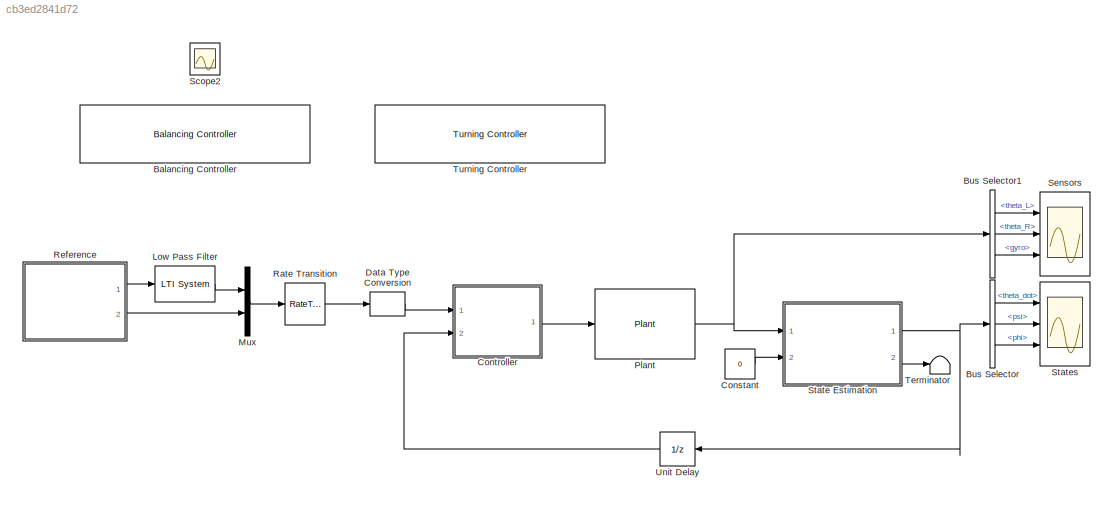
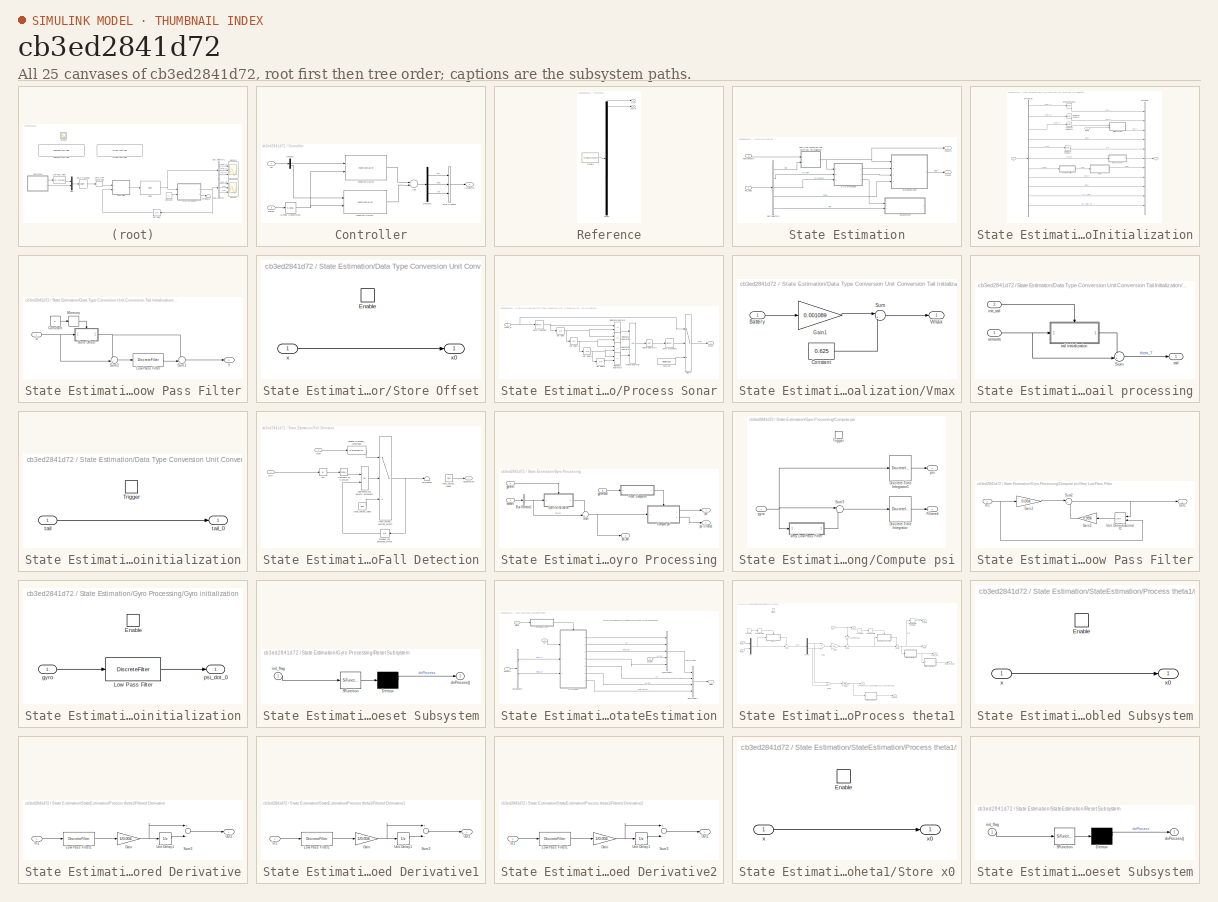
[diagram: thumbnail index - all 25 canvases of the model, root first then tree order]
MODEL slx_cb3ed2841d72
KIND model
BLOCK [Reference] Balancing Controller  REF=SimControllerFcns/Balancing Controller
  Ports = [0, 0, 0, 1]
  SourceBlock = SimControllerFcns/Balancing Controller
  SourceType = SubSystem
BLOCK [BusSelector] Bus Selector
  OutputSignals = balancerStates.theta_dot,balancerStates.psi,phi
  Ports = [1, 3]
BLOCK [BusSelector] Bus Selector1
  OutputSignals = theta_L,theta_R,gyro
  Ports = [1, 3]
BLOCK [Constant] Constant
  OutDataTypeStr = Bus: Init_Bus
  Value = 0
BLOCK [SubSystem] Controller
  Ports = [2, 1]
  RequestExecContextInheritance = off
BLOCK [Outport] Controller/Actuators
  IconDisplay = Port number
  OutDataTypeStr = Bus: PWM_bus
BLOCK [Sum] Controller/Add
  InputSameDT = off
  OutDataTypeStr = Inherit: Inherit via internal rule
  Ports = [2, 1]
  SaturateOnIntegerOverflow = off
BLOCK [BusCreator] Controller/Bus Creator
  DisplayOption = bar
  Inputs = 3
  OutDataTypeStr = Bus: PWM_bus
  Ports = [3, 1]
BLOCK [Demux] Controller/Demux
  DisplayOption = bar
  Outputs = 2
  Ports = [1, 2]
BLOCK [Demux] Controller/Demux1
  DisplayOption = bar
  Outputs = 3
  Ports = [1, 3]
BLOCK [FunctionCaller] Controller/Function Caller
  FunctionPrototype = out = BalancingCtrl(v_ref,states)
  Ports = [2, 1]
BLOCK [FunctionCaller] Controller/Function Caller1
  FunctionPrototype = out = TurningCtrl(w_ref,states)
  Ports = [2, 1]
BLOCK [SignalConversion] Controller/Signal Conversion1
  ConversionOutput = Nonvirtual bus
BLOCK [Inport] Controller/ref
  IconDisplay = Port number
BLOCK [Inport] Controller/states
  IconDisplay = Port number
  OutDataTypeStr = Bus: States_Bus
  Port = 2
BLOCK [DataTypeConversion] Data Type Conversion
  OutDataTypeStr = single
  RndMeth = Floor
  SaturateOnIntegerOverflow = off
BLOCK [Reference] Low Pass Filter  REF=cstblocks/LTI System
  Commented = through
  IC = []
  Ports = [1, 1]
  SourceBlock = cstblocks/LTI System
  SourceType = LTI Block
  sys = tf(20,[1 20])
BLOCK [Mux] Mux
  DisplayOption = bar
  Inputs = 2
  Ports = [2, 1]
BLOCK [Reference] Plant  REF=plantNXT/Plant
  Ports = [1, 1]
  SourceBlock = plantNXT/Plant
  SourceType = SubSystem
BLOCK [RateTransition] Rate Transition
  OutPortSampleTime = balancer_ts
BLOCK [SubSystem] Reference
  ClipboardFcn = sigbuilder_block('clipboard');
  CloseFcn = sigbuilder_block('close');
  ContinueFcn = sigbuilder_block('continue');
  CopyFcn = sigbuilder_block('copy');
  DeleteFcn = sigbuilder_block('delete');
  LoadFcn = sigbuilder_block('load');
  MaskHideContents = on
  ModelCloseFcn = sigbuilder_block('modelClose');
  NameChangeFcn = sigbuilder_block('namechange');
  OpenFcn = sigbuilder_block('open',[49.0345 291.103 550.552 394.759 ]);
  PauseFcn = sigbuilder_block('pause');
  Ports = [0, 2]
  PreSaveFcn = sigbuilder_block('preSave');
  RequestExecContextInheritance = off
  StartFcn = sigbuilder_block('start');
  StopFcn = sigbuilder_block('stop');
  Tag = STV Subsys
BLOCK [Demux] Reference/Demux
  Outputs = 2
  Ports = [1, 2]
  Tag = STV Demux
BLOCK [FromWorkspace] Reference/FromWs
  SampleTime = 0
  Tag = STV FromWs
  VariableName = tuvar
  ZeroCross = on
BLOCK [Outport] Reference/V_ref
  IconDisplay = Port number
  Tag = STV Outport
BLOCK [Outport] Reference/phi_ref
  IconDisplay = Port number
  Port = 2
  Tag = STV Outport
BLOCK [Scope] Scope2
  DataFormat = StructureWithTime
  Floating = off
  IOType = viewer
  NumInputPorts = 1
  Ports = []
  SampleTime = 0
  SaveName = ScopeData2
  ShowLegends = off
BLOCK [Scope] Sensors
  DataFormat = StructureWithTime
  Floating = off
  LimitDataPoints = off
  NumInputPorts = 3
  Ports = [3]
  SampleTime = 0
  SaveName = ScopeData1
  ShowLegends = off
  TimeRange = 50
  YMax = 10~0.15~1.5
  YMin = -10~-0.1~-1
  ZoomMode = yonly
BLOCK [SubSystem] State Estimation
  Ports = [2, 2]
  RequestExecContextInheritance = off
BLOCK [BusSelector] State Estimation/Bus Selector1
  OutputSignals = tail,gyroInit,gyroReset,theta,fall
  Ports = [1, 5]
BLOCK [SubSystem] State Estimation/Data Type Conversion Unit Conversion Tail Initialization
  Ports = [2, 1]
  RequestExecContextInheritance = off
BLOCK [BusCreator] State Estimation/Data Type Conversion Unit Conversion Tail Initialization/Bus Creator
  DisplayOption = bar
  Inputs = 11
  OutDataTypeStr = Bus: Sensors_Bus
  Ports = [11, 1]
BLOCK [BusSelector] State Estimation/Data Type Conversion Unit Conversion Tail Initialization/Bus Selector
  OutputSignals = theta_L,theta_R,theta_T,light,gyro,sonar,battery,touch,time,ok_button,BT_status_in
  Ports = [1, 11]
BLOCK [Reference] State Estimation/Data Type Conversion Unit Conversion Tail Initialization/Degrees to Radians  REF=simulink_extras/Transformations/Degrees to
Radians
  Ports = [1, 1]
  SourceBlock = simulink_extras/Transformations/Degrees to\nRadians
  SourceType = DegreesToRadians
BLOCK [Reference] State Estimation/Data Type Conversion Unit Conversion Tail Initialization/Degrees to Radians1  REF=simulink_extras/Transformations/Degrees to
Radians
  Ports = [1, 1]
  SourceBlock = simulink_extras/Transformations/Degrees to\nRadians
  SourceType = DegreesToRadians
BLOCK [Reference] State Estimation/Data Type Conversion Unit Conversion Tail Initialization/Degrees to Radians2  REF=simulink_extras/Transformations/Degrees to
Radians
  Ports = [1, 1]
  SourceBlock = simulink_extras/Transformations/Degrees to\nRadians
  SourceType = DegreesToRadians
BLOCK [Reference] State Estimation/Data Type Conversion Unit Conversion Tail Initialization/Degrees to Radians4  REF=simulink_extras/Transformations/Degrees to
Radians
  Ports = [1, 1]
  SourceBlock = simulink_extras/Transformations/Degrees to\nRadians
  SourceType = DegreesToRadians
BLOCK [SubSystem] State Estimation/Data Type Conversion Unit Conversion Tail Initialization/Low Pass Filter
  Ports = [1, 1]
  RequestExecContextInheritance = off
BLOCK [Constant] State Estimation/Data Type Conversion Unit Conversion Tail Initialization/Low Pass Filter/Constant
  OutDataTypeStr = boolean
  Value = 0
BLOCK [DiscreteFilter] State Estimation/Data Type Conversion Unit Conversion Tail Initialization/Low Pass Filter/Low Pass Filter
  Denominator = [1 -0.99]
  InputPortMap = u0
  Numerator = [.01]
  Ports = [1, 1]
BLOCK [Memory] State Estimation/Data Type Conversion Unit Conversion Tail Initialization/Low Pass Filter/Memory
  InheritSampleTime = on
  X0 = 1
BLOCK [SubSystem] State Estimation/Data Type Conversion Unit Conversion Tail Initialization/Low Pass Filter/Store Offset
  Ports = [1, 1, 1]
  RequestExecContextInheritance = off
  TreatAsAtomicUnit = on
BLOCK [EnablePort] State Estimation/Data Type Conversion Unit Conversion Tail Initialization/Low Pass Filter/Store Offset/Enable
  Ports = []
BLOCK [Inport] State Estimation/Data Type Conversion Unit Conversion Tail Initialization/Low Pass Filter/Store Offset/x
  IconDisplay = Port number
BLOCK [Outport] State Estimation/Data Type Conversion Unit Conversion Tail Initialization/Low Pass Filter/Store Offset/x0
  IconDisplay = Port number
  InitialOutput = 0
BLOCK [Sum] State Estimation/Data Type Conversion Unit Conversion Tail Initialization/Low Pass Filter/Sum1
  IconShape = round
  InputSameDT = off
  Inputs = ++|
  OutDataTypeStr = Inherit: Inherit via internal rule
  Ports = [2, 1]
  SaturateOnIntegerOverflow = off
BLOCK [Sum] State Estimation/Data Type Conversion Unit Conversion Tail Initialization/Low Pass Filter/Sum2
  IconShape = round
  InputSameDT = off
  Inputs = -+|
  OutDataTypeStr = Inherit: Inherit via internal rule
  Ports = [2, 1]
  SaturateOnIntegerOverflow = off
BLOCK [Inport] State Estimation/Data Type Conversion Unit Conversion Tail Initialization/Low Pass Filter/u
  IconDisplay = Port number
BLOCK [Outport] State Estimation/Data Type Conversion Unit Conversion Tail Initialization/Low Pass Filter/y
  IconDisplay = Port number
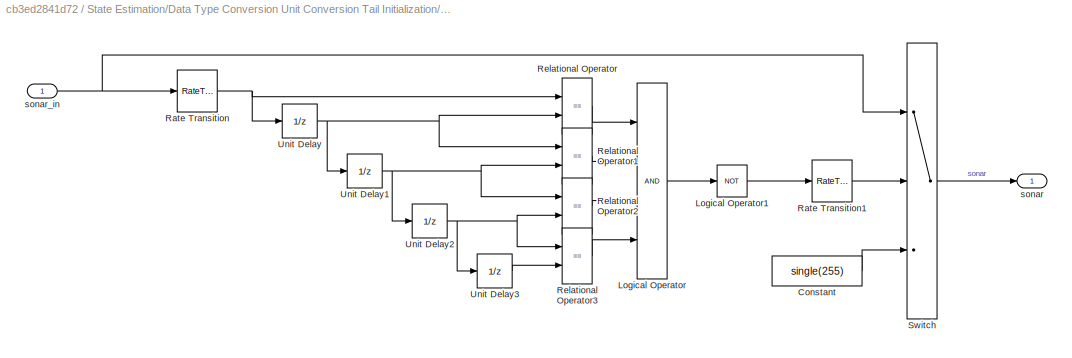
BLOCK [SubSystem] State Estimation/Data Type Conversion Unit Conversion Tail Initialization/Process Sonar
  Commented = through
  Ports = [1, 1]
  RequestExecContextInheritance = off
BLOCK [Constant] State Estimation/Data Type Conversion Unit Conversion Tail Initialization/Process Sonar/Constant
  Value = single(255)
BLOCK [Logic] State Estimation/Data Type Conversion Unit Conversion Tail Initialization/Process Sonar/Logical Operator
  AllPortsSameDT = off
  Inputs = 4
  OutDataTypeStr = boolean
  Ports = [4, 1]
BLOCK [Logic] State Estimation/Data Type Conversion Unit Conversion Tail Initialization/Process Sonar/Logical Operator1
  AllPortsSameDT = off
  Operator = NOT
  OutDataTypeStr = boolean
  Ports = [1, 1]
BLOCK [RateTransition] State Estimation/Data Type Conversion Unit Conversion Tail Initialization/Process Sonar/Rate Transition
  OutPortSampleTime = 0.02
BLOCK [RateTransition] State Estimation/Data Type Conversion Unit Conversion Tail Initialization/Process Sonar/Rate Transition1
  OutPortSampleTime = 0.004
BLOCK [RelationalOperator] State Estimation/Data Type Conversion Unit Conversion Tail Initialization/Process Sonar/Relational Operator
  InputSameDT = off
  Operator = ==
  OutDataTypeStr = boolean
  Ports = [2, 1]
BLOCK [RelationalOperator] State Estimation/Data Type Conversion Unit Conversion Tail Initialization/Process Sonar/Relational Operator1
  InputSameDT = off
  Operator = ==
  OutDataTypeStr = boolean
  Ports = [2, 1]
BLOCK [RelationalOperator] State Estimation/Data Type Conversion Unit Conversion Tail Initialization/Process Sonar/Relational Operator2
  InputSameDT = off
  Operator = ==
  OutDataTypeStr = boolean
  Ports = [2, 1]
BLOCK [RelationalOperator] State Estimation/Data Type Conversion Unit Conversion Tail Initialization/Process Sonar/Relational Operator3
  InputSameDT = off
  Operator = ==
  OutDataTypeStr = boolean
  Ports = [2, 1]
BLOCK [Switch] State Estimation/Data Type Conversion Unit Conversion Tail Initialization/Process Sonar/Switch
  Criteria = u2 ~= 0
  InputSameDT = off
  SaturateOnIntegerOverflow = off
BLOCK [UnitDelay] State Estimation/Data Type Conversion Unit Conversion Tail Initialization/Process Sonar/Unit Delay
  InputProcessing = Elements as channels (sample based)
  SampleTime = -1
BLOCK [UnitDelay] State Estimation/Data Type Conversion Unit Conversion Tail Initialization/Process Sonar/Unit Delay1
  InputProcessing = Elements as channels (sample based)
  SampleTime = -1
BLOCK [UnitDelay] State Estimation/Data Type Conversion Unit Conversion Tail Initialization/Process Sonar/Unit Delay2
  InputProcessing = Elements as channels (sample based)
  SampleTime = -1
BLOCK [UnitDelay] State Estimation/Data Type Conversion Unit Conversion Tail Initialization/Process Sonar/Unit Delay3
  InputProcessing = Elements as channels (sample based)
  SampleTime = -1
BLOCK [Outport] State Estimation/Data Type Conversion Unit Conversion Tail Initialization/Process Sonar/sonar
  IconDisplay = Port number
BLOCK [Inport] State Estimation/Data Type Conversion Unit Conversion Tail Initialization/Process Sonar/sonar_in
  IconDisplay = Port number
BLOCK [SubSystem] State Estimation/Data Type Conversion Unit Conversion Tail Initialization/Vmax
  Ports = [1, 1]
  RequestExecContextInheritance = off
BLOCK [Inport] State Estimation/Data Type Conversion Unit Conversion Tail Initialization/Vmax/Battery
  IconDisplay = Port number
BLOCK [Constant] State Estimation/Data Type Conversion Unit Conversion Tail Initialization/Vmax/Constant
  OutDataTypeStr = single
  Value = 0.625
BLOCK [Gain] State Estimation/Data Type Conversion Unit Conversion Tail Initialization/Vmax/Gain1
  Gain = 0.001089
  OutDataTypeStr = Inherit: Inherit via internal rule
  ParamDataTypeStr = Inherit: Inherit via internal rule
  SaturateOnIntegerOverflow = off
BLOCK [Sum] State Estimation/Data Type Conversion Unit Conversion Tail Initialization/Vmax/Sum
  IconShape = round
  InputSameDT = off
  Inputs = |+-
  OutDataTypeStr = Inherit: Inherit via internal rule
  Ports = [2, 1]
  SaturateOnIntegerOverflow = off
BLOCK [Outport] State Estimation/Data Type Conversion Unit Conversion Tail Initialization/Vmax/Vmax
  IconDisplay = Port number
BLOCK [Inport] State Estimation/Data Type Conversion Unit Conversion Tail Initialization/init_tail
  IconDisplay = Port number
  Port = 2
BLOCK [SubSystem] State Estimation/Data Type Conversion Unit Conversion Tail Initialization/tail processing
  Ports = [2, 1]
  RequestExecContextInheritance = off
BLOCK [Sum] State Estimation/Data Type Conversion Unit Conversion Tail Initialization/tail processing/Sum
  IconShape = round
  InputSameDT = off
  Inputs = -+|
  OutDataTypeStr = Inherit: Inherit via internal rule
  Ports = [2, 1]
  SaturateOnIntegerOverflow = off
BLOCK [Inport] State Estimation/Data Type Conversion Unit Conversion Tail Initialization/tail processing/init_tail
  IconDisplay = Port number
  Port = 2
BLOCK [Inport] State Estimation/Data Type Conversion Unit Conversion Tail Initialization/tail processing/sensors
  IconDisplay = Port number
BLOCK [Outport] State Estimation/Data Type Conversion Unit Conversion Tail Initialization/tail processing/tail
  IconDisplay = Port number
  InitialOutput = 0
  OutputWhenDisabled = reset
BLOCK [SubSystem] State Estimation/Data Type Conversion Unit Conversion Tail Initialization/tail processing/tail initialization
  Ports = [1, 1, 0, 1]
  RequestExecContextInheritance = off
  TreatAsAtomicUnit = on
BLOCK [TriggerPort] State Estimation/Data Type Conversion Unit Conversion Tail Initialization/tail processing/tail initialization/Trigger
  PortDimensions = 1
  Ports = []
  StatesWhenEnabling = held
BLOCK [Inport] State Estimation/Data Type Conversion Unit Conversion Tail Initialization/tail processing/tail initialization/tail
  IconDisplay = Port number
BLOCK [Outport] State Estimation/Data Type Conversion Unit Conversion Tail Initialization/tail processing/tail initialization/tail_0
  IconDisplay = Port number
  InitialOutput = 0
BLOCK [Inport] State Estimation/Data Type Conversion Unit Conversion Tail Initialization/u
  IconDisplay = Port number
BLOCK [Outport] State Estimation/Data Type Conversion Unit Conversion Tail Initialization/y
  IconDisplay = Port number
BLOCK [SubSystem] State Estimation/Fall Detection
  Commented = on
  Ports = [2, 1]
  RequestExecContextInheritance = off
BLOCK [Abs] State Estimation/Fall Detection/Abs
  SaturateOnIntegerOverflow = off
BLOCK [Reference] State Estimation/Fall Detection/Compare To Constant  REF=simulink/Logic and Bit
Operations/Compare
To Constant
  OutDataTypeStr = boolean
  Ports = [1, 1]
  SourceBlock = simulink/Logic and Bit\nOperations/Compare\nTo Constant
  SourceType = Compare To Constant
  ZeroCross = on
  const = 1
  relop = >
BLOCK [Terminator] State Estimation/Fall Detection/Terminator
BLOCK [Logic] State Estimation/Fall Detection/aggregate_fall_detection_comparison
  Operator = OR
  OutDataTypeStr = boolean
  Ports = [2, 1]
BLOCK [DataTypeConversion] State Estimation/Fall Detection/boolean_to_integer_conversion
  AttributesFormatString = Output data type: %<OutDataTypeStr>
  OutDataTypeStr = uint8
  RndMeth = Floor
  SaturateOnIntegerOverflow = off
BLOCK [Outport] State Estimation/Fall Detection/fall_detected
  IconDisplay = Port number
BLOCK [Inport] State Estimation/Fall Detection/gyro
  AttributesFormatString = Output data type: %<OutDataTypeStr>
  IconDisplay = Port number
BLOCK [UnitDelay] State Estimation/Fall Detection/previous_fall_detection_status
  InputProcessing = Elements as channels (sample based)
  SampleTime = -1
BLOCK [Inport] State Estimation/Fall Detection/reset
  AttributesFormatString = Output data type: %<OutDataTypeStr>
  IconDisplay = Port number
  OutDataTypeStr = boolean
  Port = 2
BLOCK [MultiPortSwitch] State Estimation/Fall Detection/reset_output_overrice_switch
  DataPortOrder = Zero-based contiguous
  Inputs = 2
  Ports = [3, 1]
  SaturateOnIntegerOverflow = off
  zeroidx = on
BLOCK [Constant] State Estimation/Fall Detection/reset_output_value
  Value = false
BLOCK [Constant] State Estimation/Fall Detection/reset_output_value1
  OutDataTypeStr = boolean
  Value = false
BLOCK [SubSystem] State Estimation/Gyro Processing
  Ports = [3, 3]
  RequestExecContextInheritance = off
BLOCK [BusSelector] State Estimation/Gyro Processing/Bus Selector1
  OutputSignals = gyro
  Ports = [1, 1]
BLOCK [SubSystem] State Estimation/Gyro Processing/Compute psi
  Ports = [1, 2, 0, 1]
  RequestExecContextInheritance = off
BLOCK [DiscreteIntegrator] State Estimation/Gyro Processing/Compute psi/Discrete-Time Integrator
  Ports = [1, 1]
  SampleTime = -1
BLOCK [DiscreteIntegrator] State Estimation/Gyro Processing/Compute psi/Discrete-Time Integrator1
  Ports = [1, 1]
  SampleTime = -1
BLOCK [Outport] State Estimation/Gyro Processing/Compute psi/Filtered
  IconDisplay = Port number
  InitialOutput = 0
  Port = 2
BLOCK [Sum] State Estimation/Gyro Processing/Compute psi/Sum3
  IconShape = round
  InputSameDT = off
  Inputs = |+-
  OutDataTypeStr = Inherit: Inherit via internal rule
  Ports = [2, 1]
  SaturateOnIntegerOverflow = off
BLOCK [TriggerPort] State Estimation/Gyro Processing/Compute psi/Trigger
  PortDimensions = 1
  Ports = []
  StatesWhenEnabling = reset
  TriggerType = function-call
BLOCK [SubSystem] State Estimation/Gyro Processing/Compute psi/Very Low Pass Filter
  Ports = [1, 1]
  RequestExecContextInheritance = off
BLOCK [Gain] State Estimation/Gyro Processing/Compute psi/Very Low Pass Filter/Gain2
  Gain = 0.004
  OutDataTypeStr = Inherit: Inherit via internal rule
  ParamDataTypeStr = Inherit: Inherit via internal rule
  SaturateOnIntegerOverflow = off
BLOCK [Gain] State Estimation/Gyro Processing/Compute psi/Very Low Pass Filter/Gain3
  Gain = 0.996
  OutDataTypeStr = Inherit: Inherit via internal rule
  ParamDataTypeStr = Inherit: Inherit via internal rule
  SaturateOnIntegerOverflow = off
BLOCK [Inport] State Estimation/Gyro Processing/Compute psi/Very Low Pass Filter/In1
  IconDisplay = Port number
BLOCK [Outport] State Estimation/Gyro Processing/Compute psi/Very Low Pass Filter/Out1
  IconDisplay = Port number
BLOCK [Sum] State Estimation/Gyro Processing/Compute psi/Very Low Pass Filter/Sum2
  IconShape = round
  InputSameDT = off
  Inputs = |++
  OutDataTypeStr = Inherit: Inherit via internal rule
  Ports = [2, 1]
  SaturateOnIntegerOverflow = off
BLOCK [Reference] State Estimation/Gyro Processing/Compute psi/Very Low Pass Filter/Unit Delay External IC  REF=simulink/Additional Math
& Discrete/Additional
Discrete/Unit Delay
External IC
  Ports = [2, 1]
  SourceBlock = simulink/Additional Math\n& Discrete/Additional\nDiscrete/Unit Delay\nExternal IC
  SourceType = Unit Delay External Initial Condition
  tsamp = -1
BLOCK [Inport] State Estimation/Gyro Processing/Compute psi/gyro
  IconDisplay = Port number
BLOCK [Outport] State Estimation/Gyro Processing/Compute psi/psi
  IconDisplay = Port number
  InitialOutput = 0
BLOCK [SubSystem] State Estimation/Gyro Processing/Gyro initialization
  Ports = [1, 1, 1]
  RequestExecContextInheritance = off
  TreatAsAtomicUnit = on
BLOCK [EnablePort] State Estimation/Gyro Processing/Gyro initialization/Enable
  Ports = []
  StatesWhenEnabling = reset
BLOCK [DiscreteFilter] State Estimation/Gyro Processing/Gyro initialization/Low Pass Filter
  Denominator = [1 -0.99]
  InputPortMap = u0
  Numerator = [.01]
  Ports = [1, 1]
BLOCK [Inport] State Estimation/Gyro Processing/Gyro initialization/gyro
  IconDisplay = Port number
BLOCK [Outport] State Estimation/Gyro Processing/Gyro initialization/psi_dot_0
  IconDisplay = Port number
  InitialOutput = 0
BLOCK [SubSystem] State Estimation/Gyro Processing/Reset Subsystem
  ErrorFcn = Stateflow.Translate.translate
  PermitHierarchicalResolution = ExplicitOnly
  Ports = [1, 1]
  RequestExecContextInheritance = off
  SFBlockType = Chart
  TreatAsAtomicUnit = on
BLOCK [Demux] State Estimation/Gyro Processing/Reset Subsystem/ Demux 
  Outputs = 1
  Ports = [1, 1]
BLOCK [S-Function] State Estimation/Gyro Processing/Reset Subsystem/ SFunction 
  EnableBusSupport = on
  FunctionName = sf_sfun
  PortCounts = [1 1]
  Ports = [1, 1]
  Tag = Stateflow S-Function plantNXT_testharness 1
BLOCK [Outport] State Estimation/Gyro Processing/Reset Subsystem/doProcess()
  IconDisplay = Port number
BLOCK [Inport] State Estimation/Gyro Processing/Reset Subsystem/init_flag
  IconDisplay = Port number
BLOCK [Sum] State Estimation/Gyro Processing/Sum
  IconShape = round
  InputSameDT = off
  Inputs = -+|
  OutDataTypeStr = Inherit: Inherit via internal rule
  Ports = [2, 1]
  SaturateOnIntegerOverflow = off
BLOCK [Inport] State Estimation/Gyro Processing/gyroInit
  IconDisplay = Port number
  Port = 2
BLOCK [Inport] State Estimation/Gyro Processing/gyroReset
  IconDisplay = Port number
  Port = 3
BLOCK [Outport] State Estimation/Gyro Processing/psi
  IconDisplay = Port number
BLOCK [Outport] State Estimation/Gyro Processing/psi filtered
  IconDisplay = Port number
  Port = 3
BLOCK [Outport] State Estimation/Gyro Processing/psi_dot
  IconDisplay = Port number
  Port = 2
BLOCK [Inport] State Estimation/Gyro Processing/sensors
  IconDisplay = Port number
BLOCK [Inport] State Estimation/Raw Sensors
  IconDisplay = Port number
BLOCK [SubSystem] State Estimation/StateEstimation
  Ports = [4, 1]
  RequestExecContextInheritance = off
BLOCK [BusCreator] State Estimation/StateEstimation/Bus Creator1
  DisplayOption = bar
  NonVirtualBus = on
  OutDataTypeStr = Bus: States_Bus
  Ports = [4, 1]
BLOCK [BusCreator] State Estimation/StateEstimation/Bus Creator2
  DisplayOption = bar
  Inputs = 5
  OutDataTypeStr = Bus: Balancer_States_Bus
  Ports = [5, 1]
BLOCK [BusSelector] State Estimation/StateEstimation/Bus Selector1
  OutputSignals = theta_L,theta_R
  Ports = [1, 2]
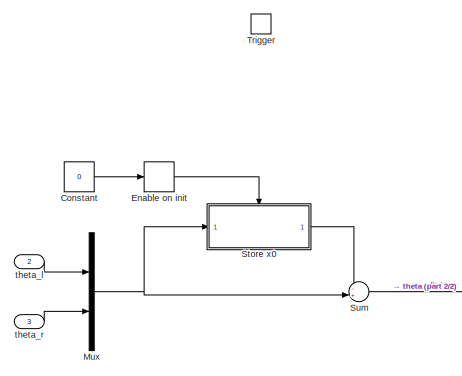
[diagram: State Estimation/StateEstimation/Process theta1 - part 1/2, top left region]
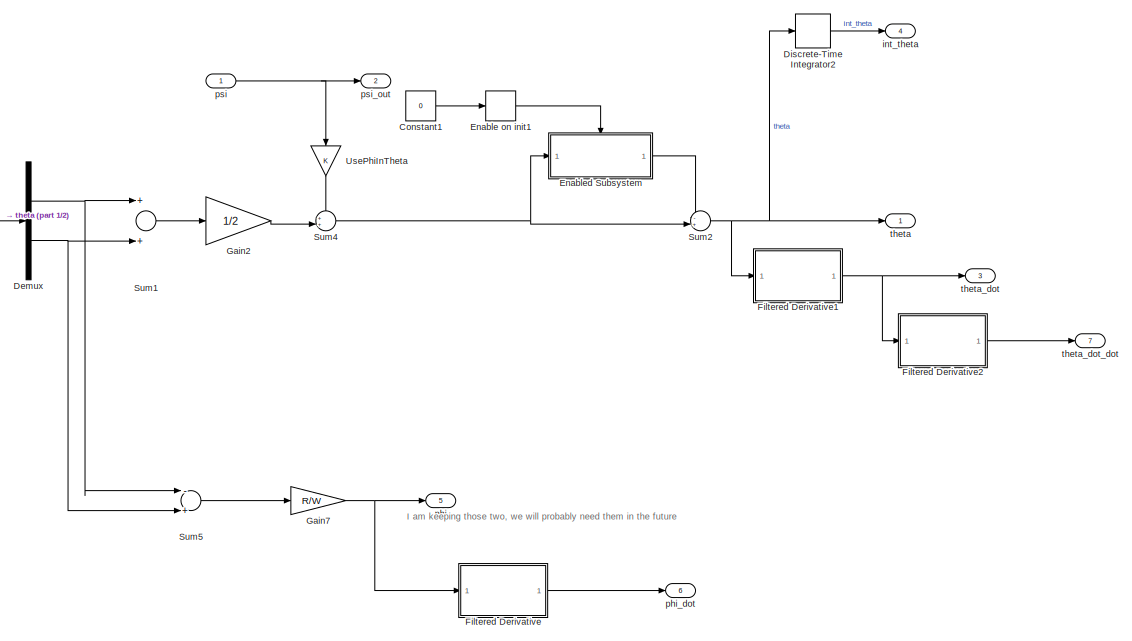
[diagram: State Estimation/StateEstimation/Process theta1 - part 2/2, center side, full height]
BLOCK [SubSystem] State Estimation/StateEstimation/Process theta1
  Ports = [3, 7, 0, 1]
  RequestExecContextInheritance = off
BLOCK [Constant] State Estimation/StateEstimation/Process theta1/Constant
  OutDataTypeStr = boolean
  Value = 0
BLOCK [Constant] State Estimation/StateEstimation/Process theta1/Constant1
  OutDataTypeStr = boolean
  Value = 0
BLOCK [Demux] State Estimation/StateEstimation/Process theta1/Demux
  DisplayOption = bar
  Outputs = 2
  Ports = [1, 2]
BLOCK [DiscreteIntegrator] State Estimation/StateEstimation/Process theta1/Discrete-Time Integrator2
  Ports = [1, 1]
  SampleTime = -1
BLOCK [Memory] State Estimation/StateEstimation/Process theta1/Enable on init
  InheritSampleTime = on
  X0 = 1
BLOCK [Memory] State Estimation/StateEstimation/Process theta1/Enable on init1
  InheritSampleTime = on
  X0 = 1
BLOCK [SubSystem] State Estimation/StateEstimation/Process theta1/Enabled Subsystem
  Ports = [1, 1, 1]
  RequestExecContextInheritance = off
  TreatAsAtomicUnit = on
BLOCK [EnablePort] State Estimation/StateEstimation/Process theta1/Enabled Subsystem/Enable
  Ports = []
BLOCK [Inport] State Estimation/StateEstimation/Process theta1/Enabled Subsystem/x
  IconDisplay = Port number
BLOCK [Outport] State Estimation/StateEstimation/Process theta1/Enabled Subsystem/x0
  IconDisplay = Port number
  InitialOutput = 0
BLOCK [SubSystem] State Estimation/StateEstimation/Process theta1/Filtered Derivative
  Ports = [1, 1]
  RequestExecContextInheritance = off
BLOCK [Gain] State Estimation/StateEstimation/Process theta1/Filtered Derivative/Gain
  Gain = 1/0.004
  OutDataTypeStr = Inherit: Inherit via internal rule
  ParamDataTypeStr = Inherit: Inherit via internal rule
  SaturateOnIntegerOverflow = off
BLOCK [Inport] State Estimation/StateEstimation/Process theta1/Filtered Derivative/In1
  IconDisplay = Port number
BLOCK [DiscreteFilter] State Estimation/StateEstimation/Process theta1/Filtered Derivative/Low Pass Filter1
  Denominator = [1 -0.8]
  InputPortMap = u0
  Numerator = [.2]
  Ports = [1, 1]
BLOCK [Outport] State Estimation/StateEstimation/Process theta1/Filtered Derivative/Out1
  IconDisplay = Port number
BLOCK [Sum] State Estimation/StateEstimation/Process theta1/Filtered Derivative/Sum3
  InputSameDT = off
  Inputs = +-
  OutDataTypeStr = Inherit: Inherit via internal rule
  Ports = [2, 1]
  SaturateOnIntegerOverflow = off
BLOCK [UnitDelay] State Estimation/StateEstimation/Process theta1/Filtered Derivative/Unit Delay1
  InputProcessing = Elements as channels (sample based)
  SampleTime = -1
BLOCK [SubSystem] State Estimation/StateEstimation/Process theta1/Filtered Derivative1
  Ports = [1, 1]
  RequestExecContextInheritance = off
BLOCK [Gain] State Estimation/StateEstimation/Process theta1/Filtered Derivative1/Gain
  Gain = 1/0.004
  OutDataTypeStr = Inherit: Inherit via internal rule
  ParamDataTypeStr = Inherit: Inherit via internal rule
  SaturateOnIntegerOverflow = off
BLOCK [Inport] State Estimation/StateEstimation/Process theta1/Filtered Derivative1/In1
  IconDisplay = Port number
BLOCK [DiscreteFilter] State Estimation/StateEstimation/Process theta1/Filtered Derivative1/Low Pass Filter1
  Denominator = [1 -0.8]
  InputPortMap = u0
  Numerator = [.2]
  Ports = [1, 1]
BLOCK [Outport] State Estimation/StateEstimation/Process theta1/Filtered Derivative1/Out1
  IconDisplay = Port number
BLOCK [Sum] State Estimation/StateEstimation/Process theta1/Filtered Derivative1/Sum3
  InputSameDT = off
  Inputs = +-
  OutDataTypeStr = Inherit: Inherit via internal rule
  Ports = [2, 1]
  SaturateOnIntegerOverflow = off
BLOCK [UnitDelay] State Estimation/StateEstimation/Process theta1/Filtered Derivative1/Unit Delay1
  InputProcessing = Elements as channels (sample based)
  SampleTime = -1
BLOCK [SubSystem] State Estimation/StateEstimation/Process theta1/Filtered Derivative2
  Ports = [1, 1]
  RequestExecContextInheritance = off
BLOCK [Gain] State Estimation/StateEstimation/Process theta1/Filtered Derivative2/Gain
  Gain = 1/0.004
  OutDataTypeStr = Inherit: Inherit via internal rule
  ParamDataTypeStr = Inherit: Inherit via internal rule
  SaturateOnIntegerOverflow = off
BLOCK [Inport] State Estimation/StateEstimation/Process theta1/Filtered Derivative2/In1
  IconDisplay = Port number
BLOCK [DiscreteFilter] State Estimation/StateEstimation/Process theta1/Filtered Derivative2/Low Pass Filter1
  Denominator = [1 -0.8]
  InputPortMap = u0
  Numerator = [.2]
  Ports = [1, 1]
BLOCK [Outport] State Estimation/StateEstimation/Process theta1/Filtered Derivative2/Out1
  IconDisplay = Port number
BLOCK [Sum] State Estimation/StateEstimation/Process theta1/Filtered Derivative2/Sum3
  InputSameDT = off
  Inputs = +-
  OutDataTypeStr = Inherit: Inherit via internal rule
  Ports = [2, 1]
  SaturateOnIntegerOverflow = off
BLOCK [UnitDelay] State Estimation/StateEstimation/Process theta1/Filtered Derivative2/Unit Delay1
  InputProcessing = Elements as channels (sample based)
  SampleTime = -1
BLOCK [Gain] State Estimation/StateEstimation/Process theta1/Gain2
  Gain = 1/2
  OutDataTypeStr = Inherit: Inherit via internal rule
  ParamDataTypeStr = Inherit: Inherit via internal rule
  SaturateOnIntegerOverflow = off
BLOCK [Gain] State Estimation/StateEstimation/Process theta1/Gain7
  Gain = R/W
  OutDataTypeStr = Inherit: Inherit via internal rule
  ParamDataTypeStr = Inherit: Inherit via internal rule
  SaturateOnIntegerOverflow = off
BLOCK [Mux] State Estimation/StateEstimation/Process theta1/Mux
  DisplayOption = bar
  Inputs = 2
  Ports = [2, 1]
BLOCK [SubSystem] State Estimation/StateEstimation/Process theta1/Store x0
  Ports = [1, 1, 1]
  RequestExecContextInheritance = off
  TreatAsAtomicUnit = on
BLOCK [EnablePort] State Estimation/StateEstimation/Process theta1/Store x0/Enable
  Ports = []
BLOCK [Inport] State Estimation/StateEstimation/Process theta1/Store x0/x
  IconDisplay = Port number
BLOCK [Outport] State Estimation/StateEstimation/Process theta1/Store x0/x0
  IconDisplay = Port number
  InitialOutput = 0
BLOCK [Sum] State Estimation/StateEstimation/Process theta1/Sum
  IconShape = round
  InputSameDT = off
  Inputs = -+|
  OutDataTypeStr = Inherit: Inherit via internal rule
  Ports = [2, 1]
  SaturateOnIntegerOverflow = off
BLOCK [Sum] State Estimation/StateEstimation/Process theta1/Sum1
  InputSameDT = off
  OutDataTypeStr = Inherit: Inherit via internal rule
  Ports = [2, 1]
  SaturateOnIntegerOverflow = off
BLOCK [Sum] State Estimation/StateEstimation/Process theta1/Sum2
  IconShape = round
  InputSameDT = off
  Inputs = -+|
  OutDataTypeStr = Inherit: Inherit via internal rule
  Ports = [2, 1]
  SaturateOnIntegerOverflow = off
BLOCK [Sum] State Estimation/StateEstimation/Process theta1/Sum4
  IconShape = round
  InputSameDT = off
  Inputs = ++|
  OutDataTypeStr = Inherit: Inherit via internal rule
  Ports = [2, 1]
  SaturateOnIntegerOverflow = off
BLOCK [Sum] State Estimation/StateEstimation/Process theta1/Sum5
  InputSameDT = off
  Inputs = -+
  OutDataTypeStr = Inherit: Inherit via internal rule
  Ports = [2, 1]
  SaturateOnIntegerOverflow = off
BLOCK [TriggerPort] State Estimation/StateEstimation/Process theta1/Trigger
  PortDimensions = 1
  Ports = []
  StatesWhenEnabling = reset
  TriggerType = function-call
BLOCK [Gain] State Estimation/StateEstimation/Process theta1/UsePhiInTheta
  OutDataTypeStr = Inherit: Inherit via internal rule
  ParamDataTypeStr = Inherit: Inherit via internal rule
  SaturateOnIntegerOverflow = off
BLOCK [Outport] State Estimation/StateEstimation/Process theta1/int_theta
  IconDisplay = Port number
  InitialOutput = 0
  Port = 4
BLOCK [Outport] State Estimation/StateEstimation/Process theta1/phi
  IconDisplay = Port number
  InitialOutput = 0
  OutputWhenDisabled = reset
  Port = 5
BLOCK [Outport] State Estimation/StateEstimation/Process theta1/phi_dot
  IconDisplay = Port number
  InitialOutput = 0
  OutputWhenDisabled = reset
  Port = 6
BLOCK [Inport] State Estimation/StateEstimation/Process theta1/psi
  IconDisplay = Port number
BLOCK [Outport] State Estimation/StateEstimation/Process theta1/psi_out
  IconDisplay = Port number
  InitialOutput = 0
  Port = 2
BLOCK [Outport] State Estimation/StateEstimation/Process theta1/theta
  IconDisplay = Port number
  InitialOutput = 0
BLOCK [Outport] State Estimation/StateEstimation/Process theta1/theta_dot
  IconDisplay = Port number
  InitialOutput = 0
  OutputWhenDisabled = reset
  Port = 3
BLOCK [Outport] State Estimation/StateEstimation/Process theta1/theta_dot_dot
  IconDisplay = Port number
  InitialOutput = 0
  OutputWhenDisabled = reset
  Port = 7
BLOCK [Inport] State Estimation/StateEstimation/Process theta1/theta_l
  IconDisplay = Port number
  Port = 2
BLOCK [Inport] State Estimation/StateEstimation/Process theta1/theta_r
  IconDisplay = Port number
  Port = 3
BLOCK [SubSystem] State Estimation/StateEstimation/Reset Subsystem
  ErrorFcn = Stateflow.Translate.translate
  PermitHierarchicalResolution = ExplicitOnly
  Ports = [1, 1]
  RequestExecContextInheritance = off
  SFBlockType = Chart
  TreatAsAtomicUnit = on
BLOCK [Demux] State Estimation/StateEstimation/Reset Subsystem/ Demux 
  Outputs = 1
  Ports = [1, 1]
BLOCK [S-Function] State Estimation/StateEstimation/Reset Subsystem/ SFunction 
  EnableBusSupport = on
  FunctionName = sf_sfun
  PortCounts = [1 1]
  Ports = [1, 1]
  Tag = Stateflow S-Function plantNXT_testharness 3
BLOCK [Outport] State Estimation/StateEstimation/Reset Subsystem/doProcess()
  IconDisplay = Port number
BLOCK [Inport] State Estimation/StateEstimation/Reset Subsystem/init_flag
  IconDisplay = Port number
BLOCK [Inport] State Estimation/StateEstimation/Sensors
  IconDisplay = Port number
BLOCK [Inport] State Estimation/StateEstimation/init theta
  IconDisplay = Port number
  Port = 4
BLOCK [Inport] State Estimation/StateEstimation/psi
  IconDisplay = Port number
  Port = 2
BLOCK [Inport] State Estimation/StateEstimation/psi_dot
  IconDisplay = Port number
  Port = 3
BLOCK [Outport] State Estimation/StateEstimation/states
  IconDisplay = Port number
  InitialOutput = 0
  OutputWhenDisabled = reset
BLOCK [Inport] State Estimation/init_flags
  IconDisplay = Port number
  Port = 2
BLOCK [Outport] State Estimation/sensors
  IconDisplay = Port number
  Port = 2
BLOCK [Outport] State Estimation/states
  IconDisplay = Port number
BLOCK [Scope] States
  DataFormat = StructureWithTime
  Floating = off
  LimitDataPoints = off
  NumInputPorts = 3
  Ports = [3]
  SampleTime = 0
  ShowLegends = off
  TimeRange = 50
  YMax = 10~0.1~0.4
  YMin = -5~-0.1~-0.1
  ZoomMode = yonly
BLOCK [Terminator] Terminator
BLOCK [Reference] Turning Controller  REF=SimControllerFcns/Turning Controller
  Ports = [0, 0, 0, 1]
  SourceBlock = SimControllerFcns/Turning Controller
  SourceType = SubSystem
BLOCK [UnitDelay] Unit Delay
  SampleTime = -1
ANNOTATION State Estimation/StateEstimation: Conversion from Raw Sensors to States as described in "NXTway plant model.pdf"
ANNOTATION State Estimation/StateEstimation/Process theta1: I am keeping those two, we will probably need them in the future
LINE Bus Selector1:1 -> Sensors:1
LINE Bus Selector1:2 -> Sensors:2
LINE Bus Selector1:3 -> Sensors:3
LINE Bus Selector:1 -> States:1
LINE Bus Selector:2 -> States:2
LINE Bus Selector:3 -> States:3
LINE Constant:1 -> State Estimation:2
LINE Controller/Add:1 -> Controller/Demux1:1
LINE Controller/Bus Creator:1 -> Controller/Actuators:1
LINE Controller/Demux1:1 -> Controller/Bus Creator:1
LINE Controller/Demux1:2 -> Controller/Bus Creator:2
LINE Controller/Demux1:3 -> Controller/Bus Creator:3
LINE Controller/Demux:1 -> Controller/Function Caller:1
LINE Controller/Demux:2 -> Controller/Function Caller1:1
LINE Controller/Function Caller1:1 -> Controller/Add:2
LINE Controller/Function Caller:1 -> Controller/Add:1
NET Controller/Signal Conversion1:1 -> Controller/Function Caller1:2, Controller/Function Caller:2
LINE Controller/ref:1 -> Controller/Demux:1
LINE Controller/states:1 -> Controller/Signal Conversion1:1
LINE Controller:1 -> Plant:1
LINE Data Type Conversion:1 -> Controller:1
LINE Low Pass Filter:1 -> Mux:1
LINE Mux:1 -> Rate Transition:1
NET Plant:1 -> Bus Selector1:1, State Estimation:1
LINE Rate Transition:1 -> Data Type Conversion:1
LINE Reference:1 -> Low Pass Filter:1
LINE Reference:2 -> Mux:2
LINE State Estimation/Bus Selector1:1 -> State Estimation/Data Type Conversion Unit Conversion Tail Initialization:2
LINE State Estimation/Bus Selector1:2 -> State Estimation/Gyro Processing:2
LINE State Estimation/Bus Selector1:3 -> State Estimation/Gyro Processing:3
LINE State Estimation/Bus Selector1:4 -> State Estimation/StateEstimation:4
LINE State Estimation/Bus Selector1:5 -> State Estimation/Fall Detection:2
LINE State Estimation/Data Type Conversion Unit Conversion Tail Initialization/Bus Creator:1 -> State Estimation/Data Type Conversion Unit Conversion Tail Initialization/y:1
LINE State Estimation/Data Type Conversion Unit Conversion Tail Initialization/Bus Selector:1 -> State Estimation/Data Type Conversion Unit Conversion Tail Initialization/Degrees to Radians:1
LINE State Estimation/Data Type Conversion Unit Conversion Tail Initialization/Bus Selector:10 -> State Estimation/Data Type Conversion Unit Conversion Tail Initialization/Bus Creator:10
LINE State Estimation/Data Type Conversion Unit Conversion Tail Initialization/Bus Selector:11 -> State Estimation/Data Type Conversion Unit Conversion Tail Initialization/Bus Creator:11
LINE State Estimation/Data Type Conversion Unit Conversion Tail Initialization/Bus Selector:2 -> State Estimation/Data Type Conversion Unit Conversion Tail Initialization/Degrees to Radians1:1
LINE State Estimation/Data Type Conversion Unit Conversion Tail Initialization/Bus Selector:3 -> State Estimation/Data Type Conversion Unit Conversion Tail Initialization/Degrees to Radians4:1
LINE State Estimation/Data Type Conversion Unit Conversion Tail Initialization/Bus Selector:4 -> State Estimation/Data Type Conversion Unit Conversion Tail Initialization/Bus Creator:4
LINE State Estimation/Data Type Conversion Unit Conversion Tail Initialization/Bus Selector:5 -> State Estimation/Data Type Conversion Unit Conversion Tail Initialization/Degrees to Radians2:1
LINE State Estimation/Data Type Conversion Unit Conversion Tail Initialization/Bus Selector:6 -> State Estimation/Data Type Conversion Unit Conversion Tail Initialization/Process Sonar:1
LINE State Estimation/Data Type Conversion Unit Conversion Tail Initialization/Bus Selector:7 -> State Estimation/Data Type Conversion Unit Conversion Tail Initialization/Low Pass Filter:1
LINE State Estimation/Data Type Conversion Unit Conversion Tail Initialization/Bus Selector:8 -> State Estimation/Data Type Conversion Unit Conversion Tail Initialization/Bus Creator:8
LINE State Estimation/Data Type Conversion Unit Conversion Tail Initialization/Bus Selector:9 -> State Estimation/Data Type Conversion Unit Conversion Tail Initialization/Bus Creator:9
LINE State Estimation/Data Type Conversion Unit Conversion Tail Initialization/Degrees to Radians1:1 -> State Estimation/Data Type Conversion Unit Conversion Tail Initialization/Bus Creator:2
LINE State Estimation/Data Type Conversion Unit Conversion Tail Initialization/Degrees to Radians2:1 -> State Estimation/Data Type Conversion Unit Conversion Tail Initialization/Bus Creator:5
LINE State Estimation/Data Type Conversion Unit Conversion Tail Initialization/Degrees to Radians4:1 -> State Estimation/Data Type Conversion Unit Conversion Tail Initialization/tail processing:1
LINE State Estimation/Data Type Conversion Unit Conversion Tail Initialization/Degrees to Radians:1 -> State Estimation/Data Type Conversion Unit Conversion Tail Initialization/Bus Creator:1
LINE State Estimation/Data Type Conversion Unit Conversion Tail Initialization/Low Pass Filter/Constant:1 -> State Estimation/Data Type Conversion Unit Conversion Tail Initialization/Low Pass Filter/Memory:1
LINE State Estimation/Data Type Conversion Unit Conversion Tail Initialization/Low Pass Filter/Low Pass Filter:1 -> State Estimation/Data Type Conversion Unit Conversion Tail Initialization/Low Pass Filter/Sum1:2
LINE State Estimation/Data Type Conversion Unit Conversion Tail Initialization/Low Pass Filter/Memory:1 -> State Estimation/Data Type Conversion Unit Conversion Tail Initialization/Low Pass Filter/Store Offset:enable
LINE State Estimation/Data Type Conversion Unit Conversion Tail Initialization/Low Pass Filter/Store Offset/x:1 -> State Estimation/Data Type Conversion Unit Conversion Tail Initialization/Low Pass Filter/Store Offset/x0:1
NET State Estimation/Data Type Conversion Unit Conversion Tail Initialization/Low Pass Filter/Store Offset:1 -> State Estimation/Data Type Conversion Unit Conversion Tail Initialization/Low Pass Filter/Sum1:1, State Estimation/Data Type Conversion Unit Conversion Tail Initialization/Low Pass Filter/Sum2:1
LINE State Estimation/Data Type Conversion Unit Conversion Tail Initialization/Low Pass Filter/Sum1:1 -> State Estimation/Data Type Conversion Unit Conversion Tail Initialization/Low Pass Filter/y:1
LINE State Estimation/Data Type Conversion Unit Conversion Tail Initialization/Low Pass Filter/Sum2:1 -> State Estimation/Data Type Conversion Unit Conversion Tail Initialization/Low Pass Filter/Low Pass Filter:1
NET State Estimation/Data Type Conversion Unit Conversion Tail Initialization/Low Pass Filter/u:1 -> State Estimation/Data Type Conversion Unit Conversion Tail Initialization/Low Pass Filter/Store Offset:1, State Estimation/Data Type Conversion Unit Conversion Tail Initialization/Low Pass Filter/Sum2:2
LINE State Estimation/Data Type Conversion Unit Conversion Tail Initialization/Low Pass Filter:1 -> State Estimation/Data Type Conversion Unit Conversion Tail Initialization/Vmax:1
LINE State Estimation/Data Type Conversion Unit Conversion Tail Initialization/Process Sonar/Constant:1 -> State Estimation/Data Type Conversion Unit Conversion Tail Initialization/Process Sonar/Switch:3
LINE State Estimation/Data Type Conversion Unit Conversion Tail Initialization/Process Sonar/Logical Operator1:1 -> State Estimation/Data Type Conversion Unit Conversion Tail Initialization/Process Sonar/Rate Transition1:1
LINE State Estimation/Data Type Conversion Unit Conversion Tail Initialization/Process Sonar/Logical Operator:1 -> State Estimation/Data Type Conversion Unit Conversion Tail Initialization/Process Sonar/Logical Operator1:1
LINE State Estimation/Data Type Conversion Unit Conversion Tail Initialization/Process Sonar/Rate Transition1:1 -> State Estimation/Data Type Conversion Unit Conversion Tail Initialization/Process Sonar/Switch:2
NET State Estimation/Data Type Conversion Unit Conversion Tail Initialization/Process Sonar/Rate Transition:1 -> State Estimation/Data Type Conversion Unit Conversion Tail Initialization/Process Sonar/Relational Operator:1, State Estimation/Data Type Conversion Unit Conversion Tail Initialization/Process Sonar/Unit Delay:1
LINE State Estimation/Data Type Conversion Unit Conversion Tail Initialization/Process Sonar/Relational Operator1:1 -> State Estimation/Data Type Conversion Unit Conversion Tail Initialization/Process Sonar/Logical Operator:2
LINE State Estimation/Data Type Conversion Unit Conversion Tail Initialization/Process Sonar/Relational Operator2:1 -> State Estimation/Data Type Conversion Unit Conversion Tail Initialization/Process Sonar/Logical Operator:3
LINE State Estimation/Data Type Conversion Unit Conversion Tail Initialization/Process Sonar/Relational Operator3:1 -> State Estimation/Data Type Conversion Unit Conversion Tail Initialization/Process Sonar/Logical Operator:4
LINE State Estimation/Data Type Conversion Unit Conversion Tail Initialization/Process Sonar/Relational Operator:1 -> State Estimation/Data Type Conversion Unit Conversion Tail Initialization/Process Sonar/Logical Operator:1
LINE State Estimation/Data Type Conversion Unit Conversion Tail Initialization/Process Sonar/Switch:1 -> State Estimation/Data Type Conversion Unit Conversion Tail Initialization/Process Sonar/sonar:1
NET State Estimation/Data Type Conversion Unit Conversion Tail Initialization/Process Sonar/Unit Delay1:1 -> State Estimation/Data Type Conversion Unit Conversion Tail Initialization/Process Sonar/Relational Operator1:2, State Estimation/Data Type Conversion Unit Conversion Tail Initialization/Process Sonar/Relational Operator2:1, State Estimation/Data Type Conversion Unit Conversion Tail Initialization/Process Sonar/Unit Delay2:1
NET State Estimation/Data Type Conversion Unit Conversion Tail Initialization/Process Sonar/Unit Delay2:1 -> State Estimation/Data Type Conversion Unit Conversion Tail Initialization/Process Sonar/Relational Operator2:2, State Estimation/Data Type Conversion Unit Conversion Tail Initialization/Process Sonar/Relational Operator3:1, State Estimation/Data Type Conversion Unit Conversion Tail Initialization/Process Sonar/Unit Delay3:1
LINE State Estimation/Data Type Conversion Unit Conversion Tail Initialization/Process Sonar/Unit Delay3:1 -> State Estimation/Data Type Conversion Unit Conversion Tail Initialization/Process Sonar/Relational Operator3:2
NET State Estimation/Data Type Conversion Unit Conversion Tail Initialization/Process Sonar/Unit Delay:1 -> State Estimation/Data Type Conversion Unit Conversion Tail Initialization/Process Sonar/Relational Operator1:1, State Estimation/Data Type Conversion Unit Conversion Tail Initialization/Process Sonar/Relational Operator:2, State Estimation/Data Type Conversion Unit Conversion Tail Initialization/Process Sonar/Unit Delay1:1
NET State Estimation/Data Type Conversion Unit Conversion Tail Initialization/Process Sonar/sonar_in:1 -> State Estimation/Data Type Conversion Unit Conversion Tail Initialization/Process Sonar/Rate Transition:1, State Estimation/Data Type Conversion Unit Conversion Tail Initialization/Process Sonar/Switch:1
LINE State Estimation/Data Type Conversion Unit Conversion Tail Initialization/Process Sonar:1 -> State Estimation/Data Type Conversion Unit Conversion Tail Initialization/Bus Creator:6
LINE State Estimation/Data Type Conversion Unit Conversion Tail Initialization/Vmax/Battery:1 -> State Estimation/Data Type Conversion Unit Conversion Tail Initialization/Vmax/Gain1:1
LINE State Estimation/Data Type Conversion Unit Conversion Tail Initialization/Vmax/Constant:1 -> State Estimation/Data Type Conversion Unit Conversion Tail Initialization/Vmax/Sum:2
LINE State Estimation/Data Type Conversion Unit Conversion Tail Initialization/Vmax/Gain1:1 -> State Estimation/Data Type Conversion Unit Conversion Tail Initialization/Vmax/Sum:1
LINE State Estimation/Data Type Conversion Unit Conversion Tail Initialization/Vmax/Sum:1 -> State Estimation/Data Type Conversion Unit Conversion Tail Initialization/Vmax/Vmax:1
LINE State Estimation/Data Type Conversion Unit Conversion Tail Initialization/Vmax:1 -> State Estimation/Data Type Conversion Unit Conversion Tail Initialization/Bus Creator:7
LINE State Estimation/Data Type Conversion Unit Conversion Tail Initialization/init_tail:1 -> State Estimation/Data Type Conversion Unit Conversion Tail Initialization/tail processing:2
LINE State Estimation/Data Type Conversion Unit Conversion Tail Initialization/tail processing/Sum:1 -> State Estimation/Data Type Conversion Unit Conversion Tail Initialization/tail processing/tail:1
LINE State Estimation/Data Type Conversion Unit Conversion Tail Initialization/tail processing/init_tail:1 -> State Estimation/Data Type Conversion Unit Conversion Tail Initialization/tail processing/tail initialization:trigger
NET State Estimation/Data Type Conversion Unit Conversion Tail Initialization/tail processing/sensors:1 -> State Estimation/Data Type Conversion Unit Conversion Tail Initialization/tail processing/Sum:2, State Estimation/Data Type Conversion Unit Conversion Tail Initialization/tail processing/tail initialization:1
LINE State Estimation/Data Type Conversion Unit Conversion Tail Initialization/tail processing/tail initialization/tail:1 -> State Estimation/Data Type Conversion Unit Conversion Tail Initialization/tail processing/tail initialization/tail_0:1
LINE State Estimation/Data Type Conversion Unit Conversion Tail Initialization/tail processing/tail initialization:1 -> State Estimation/Data Type Conversion Unit Conversion Tail Initialization/tail processing/Sum:1
LINE State Estimation/Data Type Conversion Unit Conversion Tail Initialization/tail processing:1 -> State Estimation/Data Type Conversion Unit Conversion Tail Initialization/Bus Creator:3
LINE State Estimation/Data Type Conversion Unit Conversion Tail Initialization/u:1 -> State Estimation/Data Type Conversion Unit Conversion Tail Initialization/Bus Selector:1
NET State Estimation/Data Type Conversion Unit Conversion Tail Initialization:1 -> State Estimation/Gyro Processing:1, State Estimation/StateEstimation:1, State Estimation/sensors:1
LINE State Estimation/Fall Detection/Abs:1 -> State Estimation/Fall Detection/Compare To Constant:1
LINE State Estimation/Fall Detection/Compare To Constant:1 -> State Estimation/Fall Detection/aggregate_fall_detection_comparison:1
LINE State Estimation/Fall Detection/aggregate_fall_detection_comparison:1 -> State Estimation/Fall Detection/reset_output_overrice_switch:2
LINE State Estimation/Fall Detection/boolean_to_integer_conversion:1 -> State Estimation/Fall Detection/reset_output_overrice_switch:1
LINE State Estimation/Fall Detection/gyro:1 -> State Estimation/Fall Detection/Abs:1
LINE State Estimation/Fall Detection/previous_fall_detection_status:1 -> State Estimation/Fall Detection/aggregate_fall_detection_comparison:2
LINE State Estimation/Fall Detection/reset:1 -> State Estimation/Fall Detection/boolean_to_integer_conversion:1
NET State Estimation/Fall Detection/reset_output_overrice_switch:1 -> State Estimation/Fall Detection/Terminator:1, State Estimation/Fall Detection/previous_fall_detection_status:1
LINE State Estimation/Fall Detection/reset_output_value1:1 -> State Estimation/Fall Detection/fall_detected:1
LINE State Estimation/Fall Detection/reset_output_value:1 -> State Estimation/Fall Detection/reset_output_overrice_switch:3
NET State Estimation/Gyro Processing/Bus Selector1:1 -> State Estimation/Gyro Processing/Gyro initialization:1, State Estimation/Gyro Processing/Sum:2
LINE State Estimation/Gyro Processing/Compute psi/Discrete-Time Integrator1:1 -> State Estimation/Gyro Processing/Compute psi/psi:1
LINE State Estimation/Gyro Processing/Compute psi/Discrete-Time Integrator:1 -> State Estimation/Gyro Processing/Compute psi/Filtered:1
LINE State Estimation/Gyro Processing/Compute psi/Sum3:1 -> State Estimation/Gyro Processing/Compute psi/Discrete-Time Integrator:1
LINE State Estimation/Gyro Processing/Compute psi/Very Low Pass Filter/Gain2:1 -> State Estimation/Gyro Processing/Compute psi/Very Low Pass Filter/Sum2:1
LINE State Estimation/Gyro Processing/Compute psi/Very Low Pass Filter/Gain3:1 -> State Estimation/Gyro Processing/Compute psi/Very Low Pass Filter/Sum2:2
NET State Estimation/Gyro Processing/Compute psi/Very Low Pass Filter/In1:1 -> State Estimation/Gyro Processing/Compute psi/Very Low Pass Filter/Gain2:1, State Estimation/Gyro Processing/Compute psi/Very Low Pass Filter/Unit Delay External IC:2
NET State Estimation/Gyro Processing/Compute psi/Very Low Pass Filter/Sum2:1 -> State Estimation/Gyro Processing/Compute psi/Very Low Pass Filter/Out1:1, State Estimation/Gyro Processing/Compute psi/Very Low Pass Filter/Unit Delay External IC:1
LINE State Estimation/Gyro Processing/Compute psi/Very Low Pass Filter/Unit Delay External IC:1 -> State Estimation/Gyro Processing/Compute psi/Very Low Pass Filter/Gain3:1
LINE State Estimation/Gyro Processing/Compute psi/Very Low Pass Filter:1 -> State Estimation/Gyro Processing/Compute psi/Sum3:2
NET State Estimation/Gyro Processing/Compute psi/gyro:1 -> State Estimation/Gyro Processing/Compute psi/Discrete-Time Integrator1:1, State Estimation/Gyro Processing/Compute psi/Sum3:1, State Estimation/Gyro Processing/Compute psi/Very Low Pass Filter:1
LINE State Estimation/Gyro Processing/Compute psi:1 -> State Estimation/Gyro Processing/psi:1
LINE State Estimation/Gyro Processing/Compute psi:2 -> State Estimation/Gyro Processing/psi filtered:1
LINE State Estimation/Gyro Processing/Gyro initialization/Low Pass Filter:1 -> State Estimation/Gyro Processing/Gyro initialization/psi_dot_0:1
LINE State Estimation/Gyro Processing/Gyro initialization/gyro:1 -> State Estimation/Gyro Processing/Gyro initialization/Low Pass Filter:1
LINE State Estimation/Gyro Processing/Gyro initialization:1 -> State Estimation/Gyro Processing/Sum:1
LINE State Estimation/Gyro Processing/Reset Subsystem:1 -> State Estimation/Gyro Processing/Compute psi:trigger
NET State Estimation/Gyro Processing/Sum:1 -> State Estimation/Gyro Processing/Compute psi:1, State Estimation/Gyro Processing/psi_dot:1
LINE State Estimation/Gyro Processing/gyroInit:1 -> State Estimation/Gyro Processing/Gyro initialization:enable
LINE State Estimation/Gyro Processing/gyroReset:1 -> State Estimation/Gyro Processing/Reset Subsystem:1
LINE State Estimation/Gyro Processing/sensors:1 -> State Estimation/Gyro Processing/Bus Selector1:1
LINE State Estimation/Gyro Processing:1 -> State Estimation/StateEstimation:2
LINE State Estimation/Gyro Processing:2 -> State Estimation/StateEstimation:3
LINE State Estimation/Gyro Processing:3 -> State Estimation/Fall Detection:1
LINE State Estimation/Raw Sensors:1 -> State Estimation/Data Type Conversion Unit Conversion Tail Initialization:1
LINE State Estimation/StateEstimation/Bus Creator1:1 -> State Estimation/StateEstimation/states:1
LINE State Estimation/StateEstimation/Bus Creator2:1 -> State Estimation/StateEstimation/Bus Creator1:1
LINE State Estimation/StateEstimation/Bus Selector1:1 -> State Estimation/StateEstimation/Process theta1:2
LINE State Estimation/StateEstimation/Bus Selector1:2 -> State Estimation/StateEstimation/Process theta1:3
LINE State Estimation/StateEstimation/Process theta1/Constant1:1 -> State Estimation/StateEstimation/Process theta1/Enable on init1:1
LINE State Estimation/StateEstimation/Process theta1/Constant:1 -> State Estimation/StateEstimation/Process theta1/Enable on init:1
NET State Estimation/StateEstimation/Process theta1/Demux:1 -> State Estimation/StateEstimation/Process theta1/Sum1:1, State Estimation/StateEstimation/Process theta1/Sum5:1
NET State Estimation/StateEstimation/Process theta1/Demux:2 -> State Estimation/StateEstimation/Process theta1/Sum1:2, State Estimation/StateEstimation/Process theta1/Sum5:2
LINE State Estimation/StateEstimation/Process theta1/Discrete-Time Integrator2:1 -> State Estimation/StateEstimation/Process theta1/int_theta:1
LINE State Estimation/StateEstimation/Process theta1/Enable on init1:1 -> State Estimation/StateEstimation/Process theta1/Enabled Subsystem:enable
LINE State Estimation/StateEstimation/Process theta1/Enable on init:1 -> State Estimation/StateEstimation/Process theta1/Store x0:enable
LINE State Estimation/StateEstimation/Process theta1/Enabled Subsystem/x:1 -> State Estimation/StateEstimation/Process theta1/Enabled Subsystem/x0:1
LINE State Estimation/StateEstimation/Process theta1/Enabled Subsystem:1 -> State Estimation/StateEstimation/Process theta1/Sum2:1
NET State Estimation/StateEstimation/Process theta1/Filtered Derivative/Gain:1 -> State Estimation/StateEstimation/Process theta1/Filtered Derivative/Sum3:1, State Estimation/StateEstimation/Process theta1/Filtered Derivative/Unit Delay1:1
LINE State Estimation/StateEstimation/Process theta1/Filtered Derivative/In1:1 -> State Estimation/StateEstimation/Process theta1/Filtered Derivative/Low Pass Filter1:1
LINE State Estimation/StateEstimation/Process theta1/Filtered Derivative/Low Pass Filter1:1 -> State Estimation/StateEstimation/Process theta1/Filtered Derivative/Gain:1
LINE State Estimation/StateEstimation/Process theta1/Filtered Derivative/Sum3:1 -> State Estimation/StateEstimation/Process theta1/Filtered Derivative/Out1:1
LINE State Estimation/StateEstimation/Process theta1/Filtered Derivative/Unit Delay1:1 -> State Estimation/StateEstimation/Process theta1/Filtered Derivative/Sum3:2
NET State Estimation/StateEstimation/Process theta1/Filtered Derivative1/Gain:1 -> State Estimation/StateEstimation/Process theta1/Filtered Derivative1/Sum3:1, State Estimation/StateEstimation/Process theta1/Filtered Derivative1/Unit Delay1:1
LINE State Estimation/StateEstimation/Process theta1/Filtered Derivative1/In1:1 -> State Estimation/StateEstimation/Process theta1/Filtered Derivative1/Low Pass Filter1:1
LINE State Estimation/StateEstimation/Process theta1/Filtered Derivative1/Low Pass Filter1:1 -> State Estimation/StateEstimation/Process theta1/Filtered Derivative1/Gain:1
LINE State Estimation/StateEstimation/Process theta1/Filtered Derivative1/Sum3:1 -> State Estimation/StateEstimation/Process theta1/Filtered Derivative1/Out1:1
LINE State Estimation/StateEstimation/Process theta1/Filtered Derivative1/Unit Delay1:1 -> State Estimation/StateEstimation/Process theta1/Filtered Derivative1/Sum3:2
NET State Estimation/StateEstimation/Process theta1/Filtered Derivative1:1 -> State Estimation/StateEstimation/Process theta1/Filtered Derivative2:1, State Estimation/StateEstimation/Process theta1/theta_dot:1
NET State Estimation/StateEstimation/Process theta1/Filtered Derivative2/Gain:1 -> State Estimation/StateEstimation/Process theta1/Filtered Derivative2/Sum3:1, State Estimation/StateEstimation/Process theta1/Filtered Derivative2/Unit Delay1:1
LINE State Estimation/StateEstimation/Process theta1/Filtered Derivative2/In1:1 -> State Estimation/StateEstimation/Process theta1/Filtered Derivative2/Low Pass Filter1:1
LINE State Estimation/StateEstimation/Process theta1/Filtered Derivative2/Low Pass Filter1:1 -> State Estimation/StateEstimation/Process theta1/Filtered Derivative2/Gain:1
LINE State Estimation/StateEstimation/Process theta1/Filtered Derivative2/Sum3:1 -> State Estimation/StateEstimation/Process theta1/Filtered Derivative2/Out1:1
LINE State Estimation/StateEstimation/Process theta1/Filtered Derivative2/Unit Delay1:1 -> State Estimation/StateEstimation/Process theta1/Filtered Derivative2/Sum3:2
LINE State Estimation/StateEstimation/Process theta1/Filtered Derivative2:1 -> State Estimation/StateEstimation/Process theta1/theta_dot_dot:1
LINE State Estimation/StateEstimation/Process theta1/Filtered Derivative:1 -> State Estimation/StateEstimation/Process theta1/phi_dot:1
LINE State Estimation/StateEstimation/Process theta1/Gain2:1 -> State Estimation/StateEstimation/Process theta1/Sum4:2
NET State Estimation/StateEstimation/Process theta1/Gain7:1 -> State Estimation/StateEstimation/Process theta1/Filtered Derivative:1, State Estimation/StateEstimation/Process theta1/phi:1
NET State Estimation/StateEstimation/Process theta1/Mux:1 -> State Estimation/StateEstimation/Process theta1/Store x0:1, State Estimation/StateEstimation/Process theta1/Sum:2
LINE State Estimation/StateEstimation/Process theta1/Store x0/x:1 -> State Estimation/StateEstimation/Process theta1/Store x0/x0:1
LINE State Estimation/StateEstimation/Process theta1/Store x0:1 -> State Estimation/StateEstimation/Process theta1/Sum:1
LINE State Estimation/StateEstimation/Process theta1/Sum1:1 -> State Estimation/StateEstimation/Process theta1/Gain2:1
NET State Estimation/StateEstimation/Process theta1/Sum2:1 -> State Estimation/StateEstimation/Process theta1/Discrete-Time Integrator2:1, State Estimation/StateEstimation/Process theta1/Filtered Derivative1:1, State Estimation/StateEstimation/Process theta1/theta:1
NET State Estimation/StateEstimation/Process theta1/Sum4:1 -> State Estimation/StateEstimation/Process theta1/Enabled Subsystem:1, State Estimation/StateEstimation/Process theta1/Sum2:2
LINE State Estimation/StateEstimation/Process theta1/Sum5:1 -> State Estimation/StateEstimation/Process theta1/Gain7:1
LINE State Estimation/StateEstimation/Process theta1/Sum:1 -> State Estimation/StateEstimation/Process theta1/Demux:1
LINE State Estimation/StateEstimation/Process theta1/UsePhiInTheta:1 -> State Estimation/StateEstimation/Process theta1/Sum4:1
NET State Estimation/StateEstimation/Process theta1/psi:1 -> State Estimation/StateEstimation/Process theta1/UsePhiInTheta:1, State Estimation/StateEstimation/Process theta1/psi_out:1
LINE State Estimation/StateEstimation/Process theta1/theta_l:1 -> State Estimation/StateEstimation/Process theta1/Mux:1
LINE State Estimation/StateEstimation/Process theta1/theta_r:1 -> State Estimation/StateEstimation/Process theta1/Mux:2
LINE State Estimation/StateEstimation/Process theta1:1 -> State Estimation/StateEstimation/Bus Creator2:1
LINE State Estimation/StateEstimation/Process theta1:2 -> State Estimation/StateEstimation/Bus Creator2:2
LINE State Estimation/StateEstimation/Process theta1:3 -> State Estimation/StateEstimation/Bus Creator2:3
LINE State Estimation/StateEstimation/Process theta1:4 -> State Estimation/StateEstimation/Bus Creator2:5
LINE State Estimation/StateEstimation/Process theta1:5 -> State Estimation/StateEstimation/Bus Creator1:2
LINE State Estimation/StateEstimation/Process theta1:6 -> State Estimation/StateEstimation/Bus Creator1:3
LINE State Estimation/StateEstimation/Process theta1:7 -> State Estimation/StateEstimation/Bus Creator1:4
LINE State Estimation/StateEstimation/Reset Subsystem:1 -> State Estimation/StateEstimation/Process theta1:trigger
LINE State Estimation/StateEstimation/Sensors:1 -> State Estimation/StateEstimation/Bus Selector1:1
LINE State Estimation/StateEstimation/init theta:1 -> State Estimation/StateEstimation/Reset Subsystem:1
LINE State Estimation/StateEstimation/psi:1 -> State Estimation/StateEstimation/Process theta1:1
LINE State Estimation/StateEstimation/psi_dot:1 -> State Estimation/StateEstimation/Bus Creator2:4
LINE State Estimation/StateEstimation:1 -> State Estimation/states:1
LINE State Estimation/init_flags:1 -> State Estimation/Bus Selector1:1
NET State Estimation:1 -> Bus Selector:1, Unit Delay:1
LINE State Estimation:2 -> Terminator:1
LINE Unit Delay:1 -> Controller:2
note: NET lines group one-source signal fan-out (src -> all destinations, sorted); 1:1 wires keep LINE
CHART State Estimation/Gyro Processing/Reset Subsystem states=1 transitions=2
  STATE_LABEL 'CheckForReset\nbind: doProcess;\nentry: doProcess;\nduring: doProcess;'
CHART State Estimation/StateEstimation/Reset Subsystem states=1 transitions=2
  STATE_LABEL 'CheckForReset\nbind: doProcess;\nentry: doProcess;\nduring: doProcess;'
